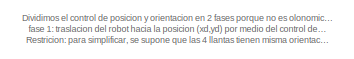
[diagram: root canvas - part 1/3, top center region]
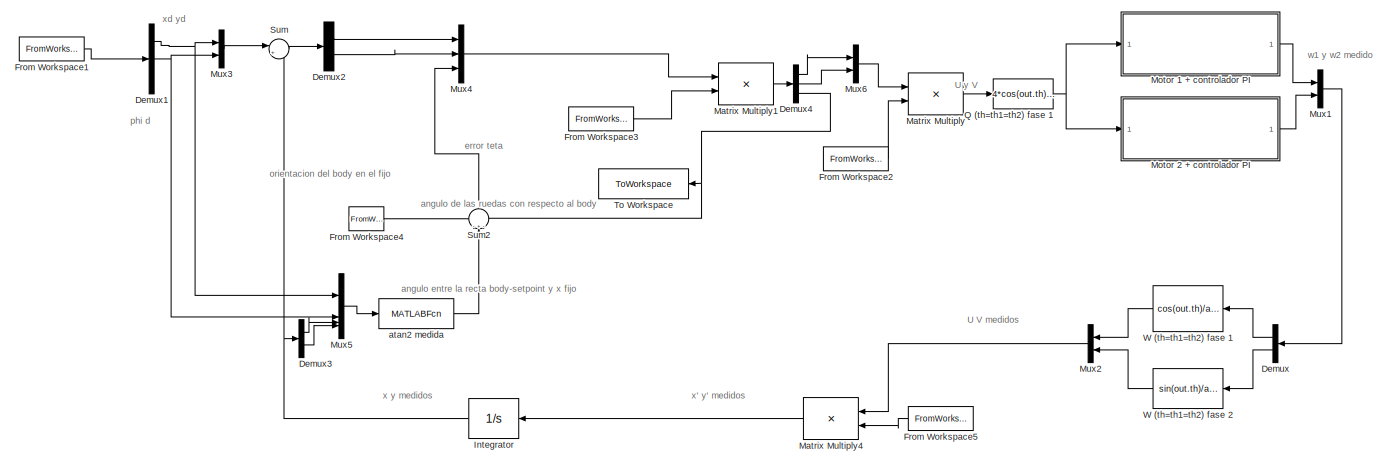
[diagram: root canvas - part 2/3, full width, middle band]
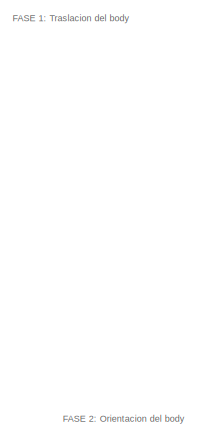
[diagram: root canvas - part 3/3, bottom left region]
MODEL slx_562eed58f177
KIND model
CONFIG AbsTol = auto
CONFIG EnableMultiTasking = off
CONFIG FixedStep = 0.030
CONFIG MaxStep = auto
CONFIG MinStep = auto
CONFIG RelTol = 1e-3
CONFIG SampleTimeConstraint = Unconstrained
CONFIG SolverName = FixedStepAuto
CONFIG StartTime = 0.0
CONFIG StopTime = 10.0
BLOCK [Demux] Demux
  NameLocation = top
  Outputs = 2
BLOCK [Demux] Demux1
  NameLocation = left
  Outputs = 3
BLOCK [Demux] Demux2
  Outputs = 2
BLOCK [Demux] Demux3
  Outputs = 2
BLOCK [Demux] Demux4
  Outputs = 3
BLOCK [FromWorkspace] From Workspace1
  VariableName = eta_d
BLOCK [FromWorkspace] From Workspace2
  VariableName = J_psi_pinv1
BLOCK [FromWorkspace] From Workspace3
  VariableName = lambda
BLOCK [FromWorkspace] From Workspace4
  VariableName = psi
BLOCK [FromWorkspace] From Workspace5
  NameLocation = top
  VariableName = J_psi_p1
BLOCK [Integrator] Integrator
  NameLocation = top
BLOCK [Product] Matrix Multiply
BLOCK [Product] Matrix Multiply1
BLOCK [Product] Matrix Multiply4
  NameLocation = top
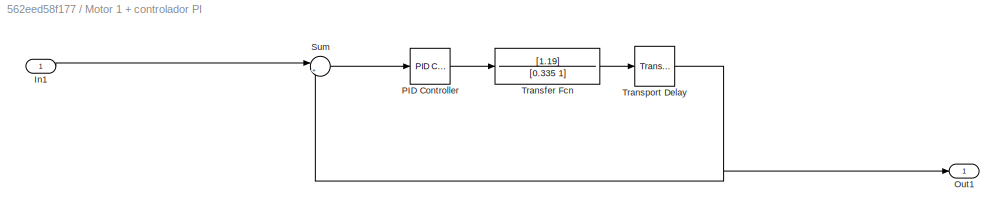
BLOCK [SubSystem] Motor 1 + controlador PI
BLOCK [Inport] Motor 1 + controlador PI/In1
BLOCK [Outport] Motor 1 + controlador PI/Out1
BLOCK [Reference] Motor 1 + controlador PI/PID Controller  REF=slpidlib/PID Controller
  LibrarySourceBlock = simulink/Continuous/PID Controller
  SourceBlock = slpidlib/PID Controller
  SourceType = PID 1dof
BLOCK [Sum] Motor 1 + controlador PI/Sum
  Inputs = |+-
BLOCK [TransferFcn] Motor 1 + controlador PI/Transfer Fcn
  Denominator = [0.335 1]
  Numerator = [1.19]
BLOCK [TransportDelay] Motor 1 + controlador PI/Transport Delay
  DelayTime = 0.01
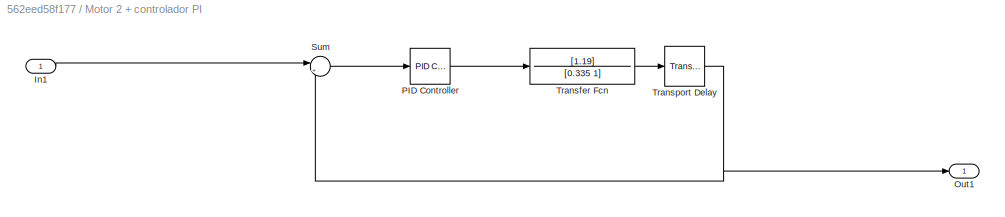
BLOCK [SubSystem] Motor 2 + controlador PI
BLOCK [Inport] Motor 2 + controlador PI/In1
BLOCK [Outport] Motor 2 + controlador PI/Out1
BLOCK [Reference] Motor 2 + controlador PI/PID Controller  REF=slpidlib/PID Controller
  LibrarySourceBlock = simulink/Continuous/PID Controller
  SourceBlock = slpidlib/PID Controller
  SourceType = PID 1dof
BLOCK [Sum] Motor 2 + controlador PI/Sum
  Inputs = |+-
BLOCK [TransferFcn] Motor 2 + controlador PI/Transfer Fcn
  Denominator = [0.335 1]
  Numerator = [1.19]
BLOCK [TransportDelay] Motor 2 + controlador PI/Transport Delay
  DelayTime = 0.01
BLOCK [Mux] Mux1
  DisplayOption = bar
  Inputs = 2
BLOCK [Mux] Mux2
  DisplayOption = bar
  Inputs = 2
  NameLocation = top
BLOCK [Mux] Mux3
  DisplayOption = bar
  Inputs = 2
BLOCK [Mux] Mux4
  DisplayOption = bar
  Inputs = 3
BLOCK [Mux] Mux5
  DisplayOption = bar
BLOCK [Mux] Mux6
  DisplayOption = bar
  Inputs = 2
BLOCK [Fcn] Q (th=th1=th2) fase 1
  Expr = 4*cos(out.th)*u(1)+4*sin(out.th)*u(2)
  NameLocation = top
BLOCK [Sum] Sum
  Inputs = |+-
BLOCK [Sum] Sum2
  Inputs = -+-
  NameLocation = left
BLOCK [ToWorkspace] To Workspace
  FixptAsFi = on
  MaxDataPoints = inf
  NameLocation = top
  SampleTime = -1
  SaveFormat = Timeseries
  VariableName = teta
BLOCK [Fcn] W (th=th1=th2) fase 1
  Expr = cos(out.th)/a*u
BLOCK [Fcn] W (th=th1=th2) fase 2
  Expr = sin(out.th)/a*u
BLOCK [MATLABFcn] atan2 medida
  MATLABFcn = atan(u(1)-u(3),u(2)-u(4))
ANNOTATION (root): FASE 1: Traslacion del body
ANNOTATION (root): FASE 2: Orientacion del body
ANNOTATION (root): Dividimos el control de posicion y orientacion en 2 fases porque no es olonomico y no nos permite controlar 3 variales de una. fase 1: traslacion del robot hacia la posicion (xd,yd) por medio del control de velocidad y de orientacion de las llantas. Restricion: para simplificar, se supone que las 4 llantas tienen misma orientacion y misma velocidad en esta primera fase.
ANNOTATION (root): U V medidos
ANNOTATION (root): U y V
ANNOTATION (root): angulo de las ruedas con respecto al body
ANNOTATION (root): angulo entre la recta body-setpoint y x fijo
ANNOTATION (root): error teta
ANNOTATION (root): orientacion del body en el fijo
ANNOTATION (root): phi d
ANNOTATION (root): w1 y w2 medido
ANNOTATION (root): x y medidos
ANNOTATION (root): x' y' medidos
ANNOTATION (root): xd yd
NET Demux1:1 -> Mux3:1, Mux5:1
NET Demux1:2 -> Mux3:2, Mux5:2
LINE Demux2:1 -> Mux4:1
LINE Demux2:2 -> Mux4:2
LINE Demux3:1 -> Mux5:3
LINE Demux3:2 -> Mux5:4
LINE Demux4:1 -> Mux6:1
LINE Demux4:2 -> Mux6:2
NET Demux4:3 -> Sum2:3, To Workspace:1
LINE Demux:1 -> W (th=th1=th2) fase 1:1
LINE Demux:2 -> W (th=th1=th2) fase 2:1
LINE From Workspace1:1 -> Demux1:1
LINE From Workspace2:1 -> Matrix Multiply:2
LINE From Workspace3:1 -> Matrix Multiply1:2
LINE From Workspace4:1 -> Sum2:1
LINE From Workspace5:1 -> Matrix Multiply4:2
NET Integrator:1 -> Demux3:1, Sum:2
LINE Matrix Multiply1:1 -> Demux4:1
LINE Matrix Multiply4:1 -> Integrator:1
LINE Matrix Multiply:1 -> Q (th=th1=th2) fase 1:1
LINE Motor 1 + controlador PI/In1:1 -> Motor 1 + controlador PI/Sum:1
LINE Motor 1 + controlador PI/PID Controller:1 -> Motor 1 + controlador PI/Transfer Fcn:1
LINE Motor 1 + controlador PI/Sum:1 -> Motor 1 + controlador PI/PID Controller:1
LINE Motor 1 + controlador PI/Transfer Fcn:1 -> Motor 1 + controlador PI/Transport Delay:1
NET Motor 1 + controlador PI/Transport Delay:1 -> Motor 1 + controlador PI/Out1:1, Motor 1 + controlador PI/Sum:2
LINE Motor 1 + controlador PI:1 -> Mux1:1
LINE Motor 2 + controlador PI/In1:1 -> Motor 2 + controlador PI/Sum:1
LINE Motor 2 + controlador PI/PID Controller:1 -> Motor 2 + controlador PI/Transfer Fcn:1
LINE Motor 2 + controlador PI/Sum:1 -> Motor 2 + controlador PI/PID Controller:1
LINE Motor 2 + controlador PI/Transfer Fcn:1 -> Motor 2 + controlador PI/Transport Delay:1
NET Motor 2 + controlador PI/Transport Delay:1 -> Motor 2 + controlador PI/Out1:1, Motor 2 + controlador PI/Sum:2
LINE Motor 2 + controlador PI:1 -> Mux1:2
LINE Mux1:1 -> Demux:1
LINE Mux2:1 -> Matrix Multiply4:1
LINE Mux3:1 -> Sum:1
LINE Mux4:1 -> Matrix Multiply1:1
LINE Mux5:1 -> atan2 medida:1
LINE Mux6:1 -> Matrix Multiply:1
NET Q (th=th1=th2) fase 1:1 -> Motor 1 + controlador PI:1, Motor 2 + controlador PI:1
LINE Sum2:1 -> Mux4:3
LINE Sum:1 -> Demux2:1
LINE W (th=th1=th2) fase 1:1 -> Mux2:1
LINE W (th=th1=th2) fase 2:1 -> Mux2:2
LINE atan2 medida:1 -> Sum2:2
note: NET lines group one-source signal fan-out (src -> all destinations, sorted); 1:1 wires keep LINE
